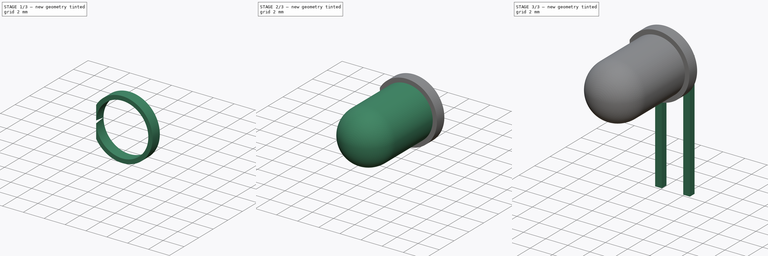
[diagram: build sequence overview — one tinted view per stage of 3, left to right]
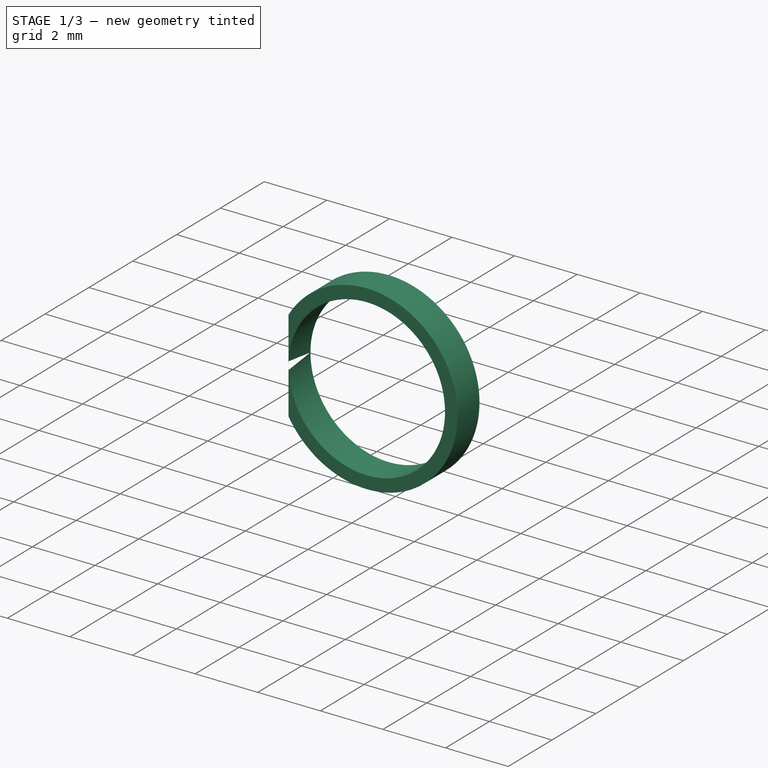
[diagram: stage 1 of 3 — iso view after this stage's code; geometry added in this stage tinted green]
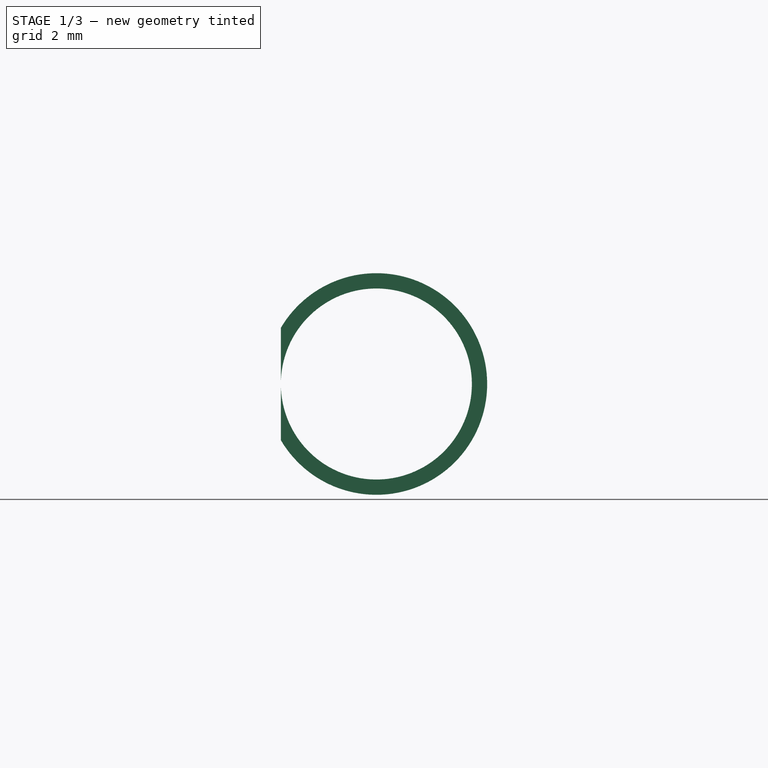
[diagram: stage 1 of 3 — front view after this stage's code; geometry added in this stage tinted green]
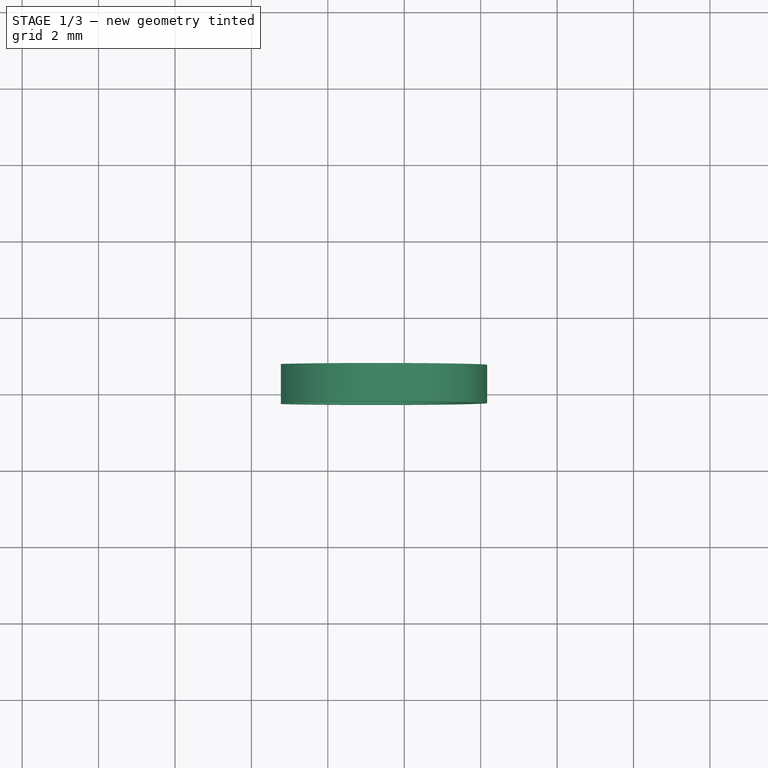
[diagram: stage 1 of 3 — top view after this stage's code; geometry added in this stage tinted green]
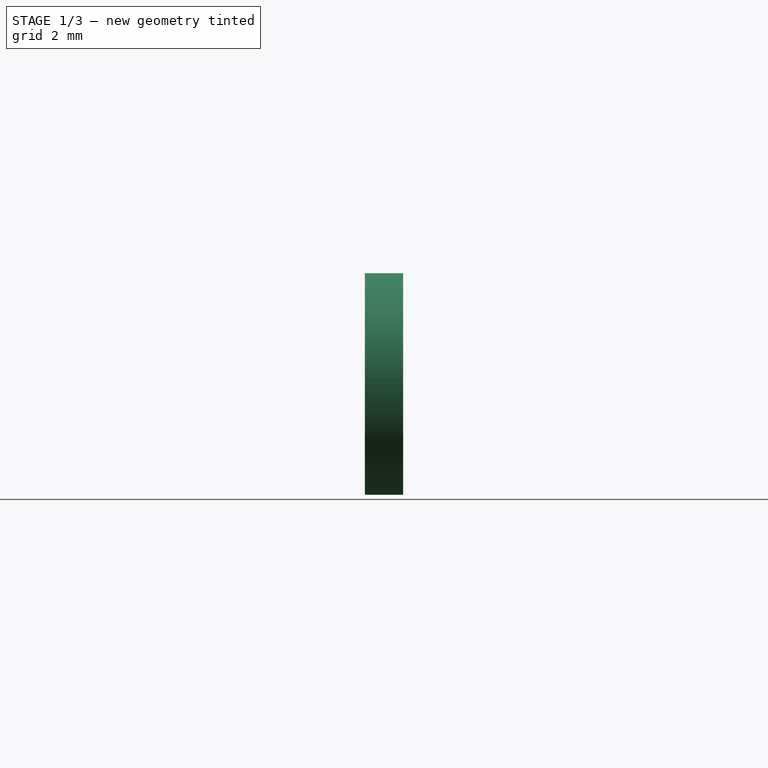
[diagram: stage 1 of 3 — right view after this stage's code; geometry added in this stage tinted green]
FCSTD DOCUMENT  (FreeCAD 0.16R6703 (Git))
Label: LED_D5.0mm_Horizontal_O1.27mm_Z9.0mm
License: All rights reserved
LicenseURL: http://en.wikipedia.org/wiki/All_rights_reserved
objects: Sketcher::SketchObject×7, PartDesign::Pad×4, PartDesign::Revolution×2, Spreadsheet::Sheet×1, PartDesign::Pocket×1
note: 21 computed .brp shape members not serialized (recipe doc carries the construction recipe); baked Part::Feature solids carry a one-line shape summary decoded from their .brp

FEATURE [Sketcher::SketchObject] Sketch004
  Placement = pos=(0,-1.27,0) rot=(1,0,0;1.5708rad)
  expr: Constraints[1] = Spreadsheet.RM / 2
  expr: Constraints[6] = Spreadsheet.dledout / 2
  expr: Constraints[2] = Spreadsheet.ledypos
  expr: Constraints[0] = Spreadsheet.dled / 2
  expr: Placement.Base.y = -Spreadsheet.offsetled
  sketch-geometry (3):
    g0: Circle CenterX=1.27 CenterY=9 CenterZ=0 NormalX=0 NormalY=0 NormalZ=1 Radius=2.5
    g1: LineSegment [constr] StartX=1.27 StartY=9 StartZ=0 EndX=10.2759 EndY=9 EndZ=0
    g2: Circle CenterX=1.27 CenterY=9 CenterZ=0 NormalX=0 NormalY=0 NormalZ=1 Radius=2.9
  constraints (7):
    c: Radius(g0) = 2.5
    c: DistanceX(g-1,g0) = 1.27
    c: DistanceY(g-1,g0) = 9
    c: Coincident(g1,g0)
    c: Horizontal(g1)
    c: Coincident(g2,g0)
    c: Radius(g2) = 2.9
FEATURE [PartDesign::Pad] Pad003
  Length = 1
  Length2 = 100
  Placement = pos=(0,-1.27,0) rot=(1,0,0;1.5708rad)
  Sketch = -> Sketch004
  Type = 0
  expr: Length = Spreadsheet.wledback
FEATURE [Sketcher::SketchObject] Sketch006
  ExternalGeometry = -> [Pad003]
  Placement = pos=(0,-2.27,0) rot=(1,0,0;1.5708rad)
  Support = -> Pad003 [Face4]
  expr: Constraints[12] = Spreadsheet.dledout / 2
  expr: Constraints[11] = Spreadsheet.dledout / 2
  expr: Constraints[8] = Spreadsheet.dledout
  expr: Constraints[9] = (Spreadsheet.dledout - Spreadsheet.dled) / 2
  sketch-geometry (5):
    g0: LineSegment StartX=-1.63 StartY=11.9 StartZ=0 EndX=-1.23 EndY=11.9 EndZ=0
    g1: LineSegment StartX=-1.23 StartY=11.9 StartZ=0 EndX=-1.23 EndY=6.1 EndZ=0
    g2: LineSegment StartX=-1.23 StartY=6.1 StartZ=0 EndX=-1.63 EndY=6.1 EndZ=0
    g3: LineSegment StartX=-1.63 StartY=6.1 StartZ=0 EndX=-1.63 EndY=11.9 EndZ=0
    g4: GeomPoint [constr] X=1.27 Y=9 Z=0
  constraints (13):
    c: Coincident(g0,g1)
    c: Coincident(g1,g2)
    c: Coincident(g2,g3)
    c: Coincident(g3,g0)
    c: Horizontal(g0)
    c: Horizontal(g2)
    c: Vertical(g1)
    c: Vertical(g3)
    c: DistanceY(g3,g3) = 5.8
    c: DistanceX(g2,g2) = 0.4
    c: Coincident(g4,g-3)
    c: DistanceX(g2,g4) = 2.9
    c: DistanceY(g2,g4) = 2.9
FEATURE [PartDesign::Pocket] Pocket
  Length = 5
  Placement = pos=(0,-1.27,0) rot=(1,0,0;1.5708rad)
  Sketch = -> Sketch006
  Type = 1
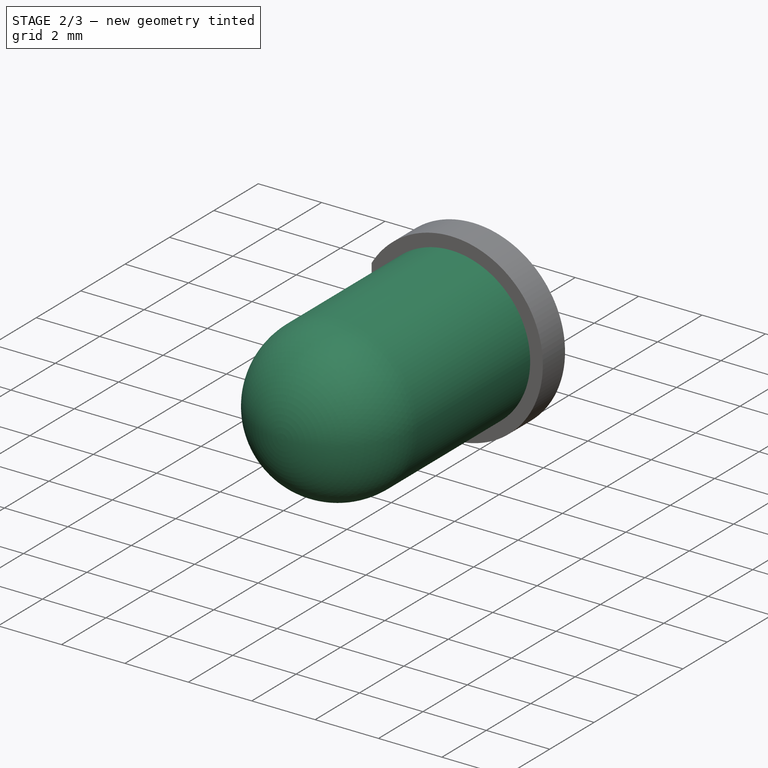
[diagram: stage 2 of 3 — iso view after this stage's code; geometry added in this stage tinted green]
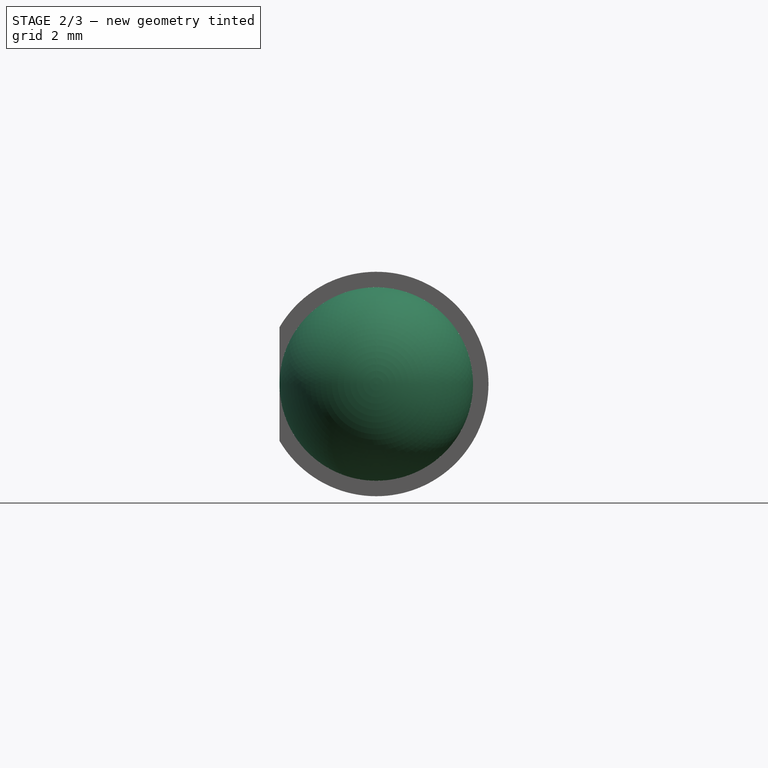
[diagram: stage 2 of 3 — front view after this stage's code; geometry added in this stage tinted green]
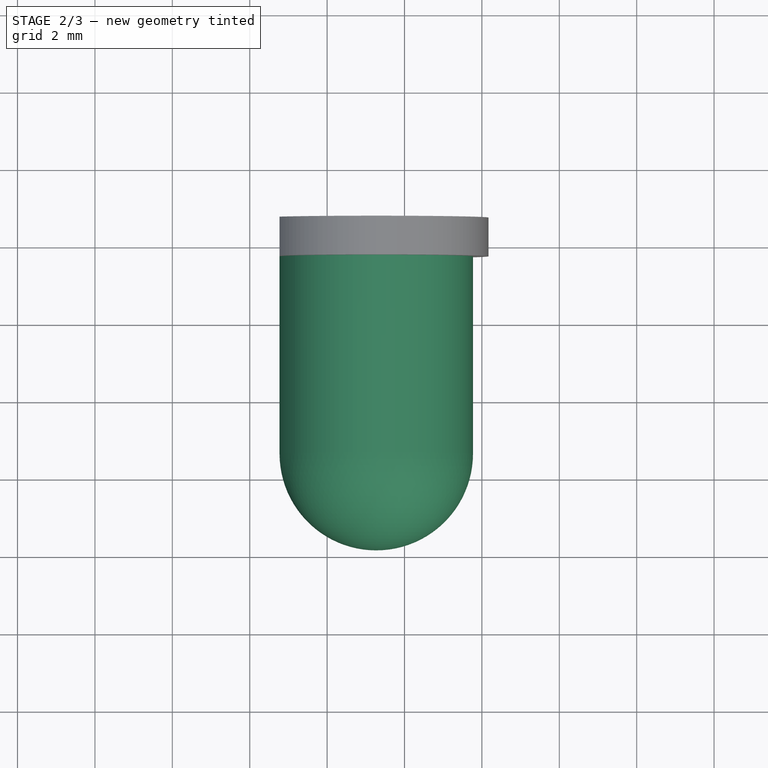
[diagram: stage 2 of 3 — top view after this stage's code; geometry added in this stage tinted green]
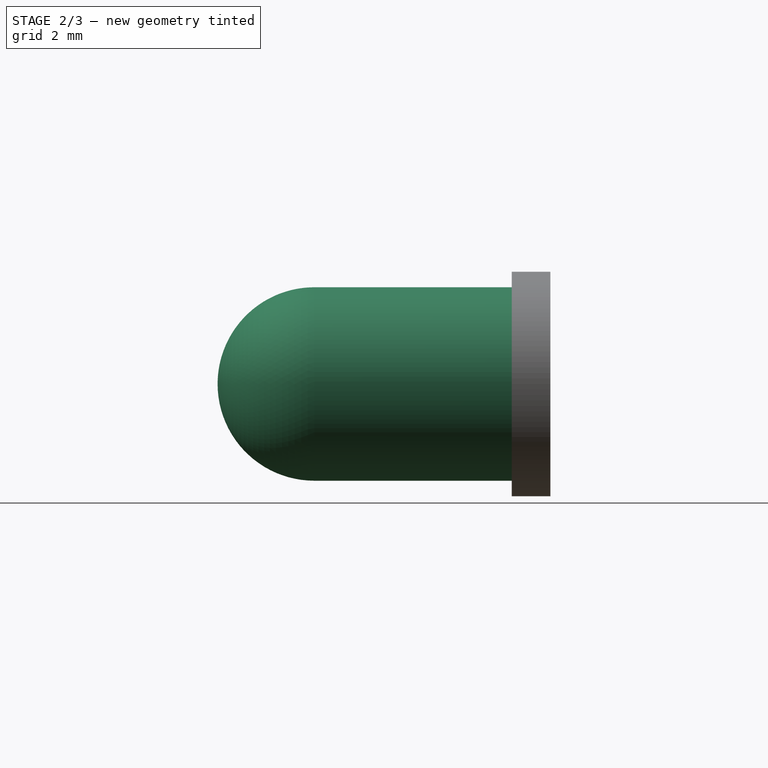
[diagram: stage 2 of 3 — right view after this stage's code; geometry added in this stage tinted green]
FEATURE [Sketcher::SketchObject] Sketch002
  Placement = pos=(0,-1.77,0) rot=(1,0,0;1.5708rad)
  expr: Constraints[10] = Spreadsheet.ledypos - Spreadsheet.d_wire / 2
  expr: Constraints[11] = (Spreadsheet.RM - Spreadsheet.RM) / 2
  expr: Placement.Base.y = -Spreadsheet.offsetled - 0.5
  expr: Constraints[8] = Spreadsheet.RM
  expr: Constraints[9] = Spreadsheet.d_wire
  sketch-geometry (4):
    g0: LineSegment StartX=0 StartY=9.3 StartZ=0 EndX=2.54 EndY=9.3 EndZ=0
    g1: LineSegment StartX=2.54 StartY=9.3 StartZ=0 EndX=2.54 EndY=8.7 EndZ=0
    g2: LineSegment StartX=2.54 StartY=8.7 StartZ=0 EndX=0 EndY=8.7 EndZ=0
    g3: LineSegment StartX=0 StartY=8.7 StartZ=0 EndX=0 EndY=9.3 EndZ=0
  constraints (12):
    c: Coincident(g0,g1)
    c: Coincident(g1,g2)
    c: Coincident(g2,g3)
    c: Coincident(g3,g0)
    c: Horizontal(g0)
    c: Horizontal(g2)
    c: Vertical(g1)
    c: Vertical(g3)
    c: DistanceX(g0,g0) = 2.54
    c: DistanceY(g3,g3) = 0.6
    c: DistanceY(g-1,g2) = 8.7
    c: DistanceX(g-1,g2) = 0
FEATURE [PartDesign::Pad] Pad002
  Length = 1
  Length2 = 100
  Placement = pos=(0,-1.77,0) rot=(1,0,0;1.5708rad)
  Sketch = -> Sketch002
  Type = 0
FEATURE [Sketcher::SketchObject] Sketch003
  Placement = pos=(1.27,0,0) rot=(0.57735,0.57735,0.57735;2.0944rad)
  expr: Constraints[15] = Spreadsheet.dled / 2
  expr: Placement.Base.x = Spreadsheet.RM / 2
  expr: Constraints[11] = Spreadsheet.ledypos
  expr: Constraints[10] = Spreadsheet.offsetled
  expr: Constraints[9] = Spreadsheet.wled
  expr: Constraints[8] = Spreadsheet.dled / 2
  sketch-geometry (5):
    g0: LineSegment StartX=-1.27 StartY=9 StartZ=0 EndX=-9.87 EndY=9 EndZ=0
    g1: LineSegment StartX=-1.27 StartY=9 StartZ=0 EndX=-1.27 EndY=11.5 EndZ=0
    g2: LineSegment StartX=-1.27 StartY=11.5 StartZ=0 EndX=-7.37 EndY=11.5 EndZ=0
    g3: ArcOfCircle CenterX=-7.37 CenterY=9 CenterZ=0 NormalX=0 NormalY=0 NormalZ=1 Radius=2.5 StartAngle=1.5708 EndAngle=3.14159
    g4: LineSegment [constr] StartX=-5.8104 StartY=9 StartZ=0 EndX=-7.37 EndY=9 EndZ=0
  constraints (16):
    c: Horizontal(g0)
    c: Coincident(g1,g0)
    c: Vertical(g1)
    c: Coincident(g2,g1)
    c: Horizontal(g2)
    c: Coincident(g3,g0)
    c: Coincident(g3,g2)
    c: PointOnObject(g3,g0)
    c: DistanceY(g1,g1) = 2.5
    c: DistanceX(g0,g0) = 8.6
    c: DistanceX(g0,g-1) = 1.27
    c: DistanceY(g-1,g0) = 9
    c: PointOnObject(g4,g0)
    c: Horizontal(g4)
    c: DistanceX(g2,g4) = 0
    c: DistanceX(g0,g4) = 2.5
FEATURE [PartDesign::Revolution] Revolution
  Angle = 360
  Axis = (0,-1.5596,0)
  Base = (1.27,-5.8104,9)
  Placement = pos=(1.27,0,0) rot=(0.57735,0.57735,0.57735;2.0944rad)
  ReferenceAxis = -> Sketch003 [Axis0]
  Reversed = true
  Sketch = -> Sketch003
FEATURE [Sketcher::SketchObject] Sketch005
  Placement = pos=(1.27,0,0) rot=(0.57735,0.57735,0.57735;2.0944rad)
  expr: Constraints[2] = Spreadsheet.offsetled + 1.2
  expr: Placement.Base.x = Spreadsheet.RM / 2
  expr: Constraints[1] = 0.5
  expr: Constraints[3] = Spreadsheet.ledypos
  sketch-geometry (4):
    g0: LineSegment StartX=-2.47 StartY=9 StartZ=0 EndX=-2.97 EndY=9 EndZ=0
    g1: LineSegment [constr] StartX=-3.9772 StartY=9 StartZ=0 EndX=-7.31458 EndY=9 EndZ=0
    g2: LineSegment StartX=-2.97 StartY=9 StartZ=0 EndX=-2.97 EndY=9.5 EndZ=0
    g3: LineSegment StartX=-2.97 StartY=9.5 StartZ=0 EndX=-2.47 EndY=9 EndZ=0
  constraints (11):
    c: Horizontal(g0)
    c: DistanceX(g0,g0) = 0.5
    c: DistanceX(g0,g-1) = 2.47
    c: DistanceY(g-1,g0) = 9
    c: PointOnObject(g1,g0)
    c: Horizontal(g1)
    c: Coincident(g2,g0)
    c: Vertical(g2)
    c: Coincident(g3,g2)
    c: Coincident(g3,g0)
    c: Angle(g3,g0) = 0.785398
FEATURE [PartDesign::Revolution] Revolution001
  Angle = 360
  Axis = (0,-3.33738,0)
  Base = (1.27,-3.9772,9)
  Placement = pos=(1.27,0,0) rot=(0.57735,0.57735,0.57735;2.0944rad)
  ReferenceAxis = -> Sketch005 [Axis0]
  Reversed = true
  Sketch = -> Sketch005
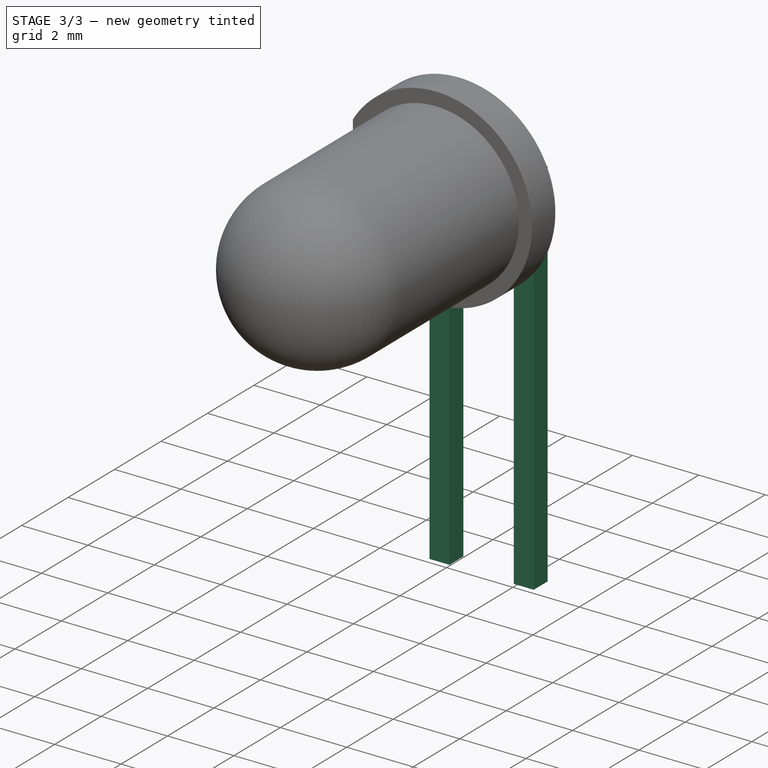
[diagram: stage 3 of 3 — iso view after this stage's code; geometry added in this stage tinted green]
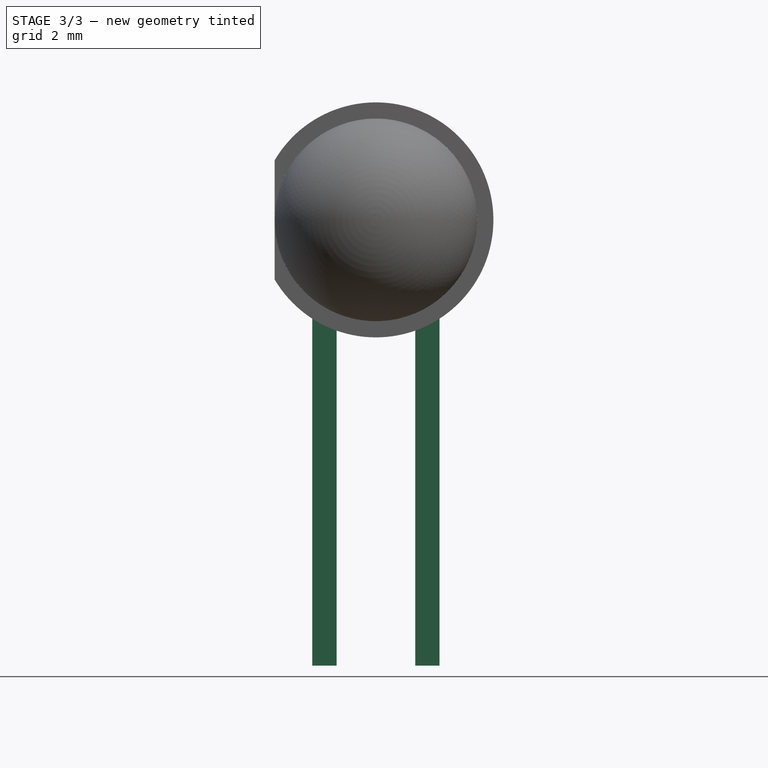
[diagram: stage 3 of 3 — front view after this stage's code; geometry added in this stage tinted green]
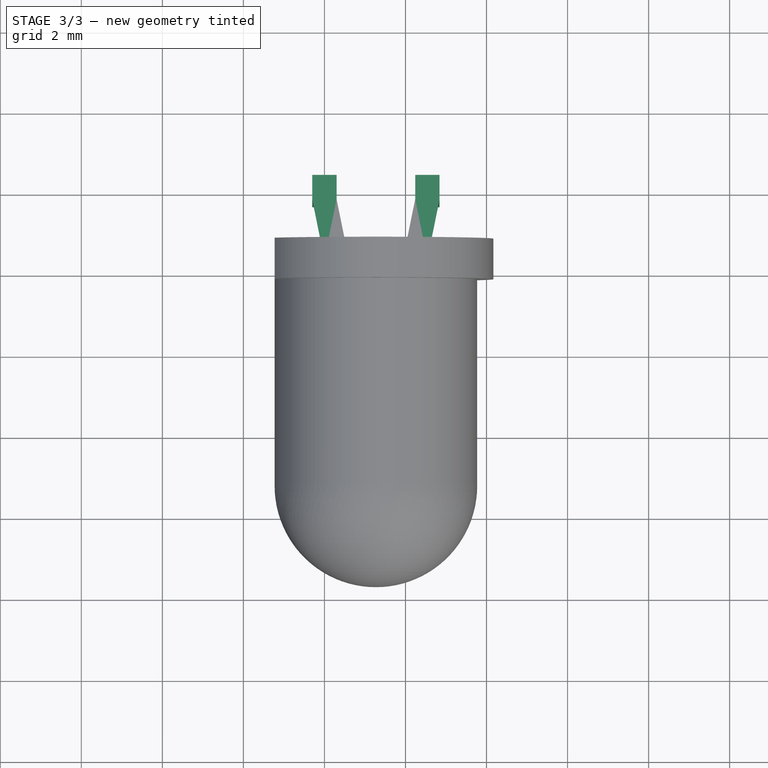
[diagram: stage 3 of 3 — top view after this stage's code; geometry added in this stage tinted green]
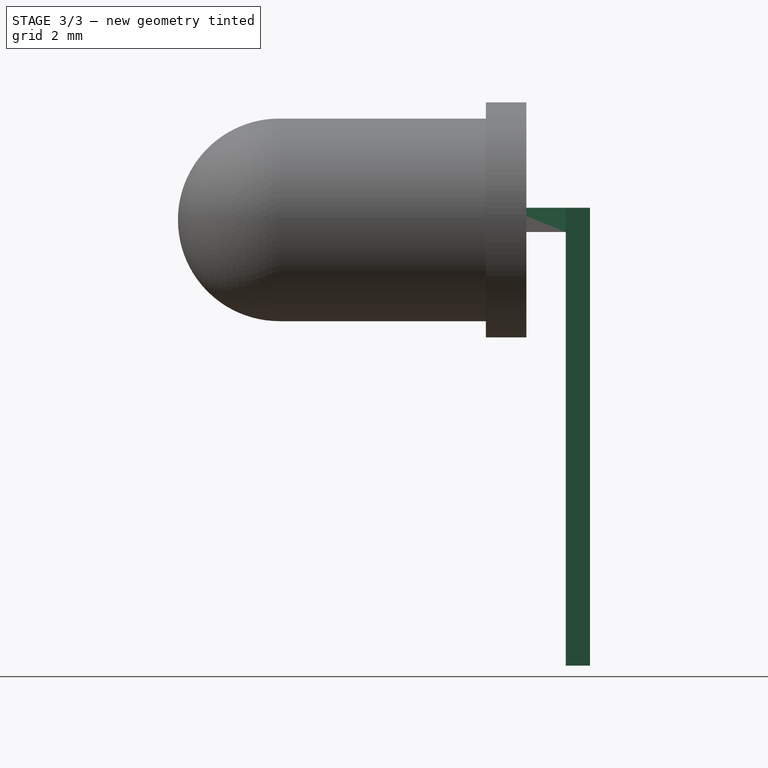
[diagram: stage 3 of 3 — right view after this stage's code; geometry added in this stage tinted green]
FEATURE [Spreadsheet::Sheet] Spreadsheet
  cells = A1=dled; B1(dled)=5; A2=dledout; B2(dledout)=5.8; A3=offsetled; B3(offsetled)=1.27; A4=RM; B4(RM)=2.54; A5=d_wire; B5(d_wire)=0.6000000000000001; A6=H; B6(H)=5; A7=wled; B7(wled)=8.6; A8=ledypos; B8(ledypos)=9; A9=wledback; B9(wledback)=1
FEATURE [Sketcher::SketchObject] Sketch
  expr: Constraints[23] = Spreadsheet.d_wire / 2
  expr: Constraints[22] = Spreadsheet.d_wire / 2
  expr: Constraints[21] = Spreadsheet.d_wire
  expr: Constraints[20] = Spreadsheet.d_wire
  expr: Constraints[16] = Spreadsheet.RM
  sketch-geometry (8):
    g0: LineSegment StartX=0.3 StartY=0.3 StartZ=0 EndX=-0.3 EndY=0.3 EndZ=0
    g1: LineSegment StartX=-0.3 StartY=0.3 StartZ=0 EndX=-0.3 EndY=-0.3 EndZ=0
    g2: LineSegment StartX=-0.3 StartY=-0.3 StartZ=0 EndX=0.3 EndY=-0.3 EndZ=0
    g3: LineSegment StartX=0.3 StartY=-0.3 StartZ=0 EndX=0.3 EndY=0.3 EndZ=0
    g4: LineSegment StartX=2.84 StartY=0.3 StartZ=0 EndX=2.24 EndY=0.3 EndZ=0
    g5: LineSegment StartX=2.24 StartY=0.3 StartZ=0 EndX=2.24 EndY=-0.3 EndZ=0
    g6: LineSegment StartX=2.24 StartY=-0.3 StartZ=0 EndX=2.84 EndY=-0.3 EndZ=0
    g7: LineSegment StartX=2.84 StartY=-0.3 StartZ=0 EndX=2.84 EndY=0.3 EndZ=0
  constraints (24):
    c: Coincident(g0,g1)
    c: Coincident(g1,g2)
    c: Coincident(g2,g3)
    c: Coincident(g3,g0)
    c: Horizontal(g0)
    c: Horizontal(g2)
    c: Vertical(g1)
    c: Vertical(g3)
    c: Coincident(g4,g5)
    c: Coincident(g5,g6)
    c: Coincident(g6,g7)
    c: Coincident(g7,g4)
    c: Horizontal(g4)
    c: Horizontal(g6)
    c: Vertical(g5)
    c: Vertical(g7)
    c: DistanceX(g0,g4) = 2.54
    c: Equal(g0,g4)
    c: DistanceY(g4,g0) = 0
    c: Equal(g3,g7)
    c: DistanceX(g0,g0) = 0.6
    c: DistanceY(g1,g1) = 0.6
    c: DistanceX(g0,g-1) = 0.3
    c: DistanceY(g-1,g0) = 0.3
FEATURE [PartDesign::Pad] Pad
  Length = 8.7
  Length2 = 2
  Sketch = -> Sketch
  Type = 4
  expr: Length = Spreadsheet.ledypos - Spreadsheet.d_wire / 2
FEATURE [Sketcher::SketchObject] Sketch001
  Placement = pos=(0,0,8.7) rot=(0,0,1;0rad)
  expr: Constraints[34] = Spreadsheet.d_wire / 2 + (Spreadsheet.RM - Spreadsheet.RM) / 2
  expr: Constraints[32] = Spreadsheet.RM - 2 * Spreadsheet.d_wire
  expr: Constraints[3] = Spreadsheet.d_wire
  expr: Constraints[15] = Spreadsheet.d_wire
  expr: Constraints[5] = Spreadsheet.d_wire / 2
  expr: Placement.Base.z = Spreadsheet.ledypos - Spreadsheet.d_wire / 2
  expr: Constraints[6] = Spreadsheet.RM - Spreadsheet.d_wire
  expr: Constraints[35] = Spreadsheet.offsetled + 0.5
  expr: Constraints[4] = Spreadsheet.d_wire / 2
  expr: Constraints[22] = Spreadsheet.RM + Spreadsheet.d_wire
  expr: Constraints[31] = Spreadsheet.RM
  sketch-geometry (12):
    g0: LineSegment StartX=0.3 StartY=0.3 StartZ=0 EndX=-0.3 EndY=0.3 EndZ=0
    g1: LineSegment StartX=2.84 StartY=0.3 StartZ=0 EndX=2.24 EndY=0.3 EndZ=0
    g2: LineSegment StartX=-0.3 StartY=0.3 StartZ=0 EndX=-0.3 EndY=-0.3 EndZ=0
    g3: LineSegment StartX=0.3 StartY=0.3 StartZ=0 EndX=0.3 EndY=-0.3 EndZ=0
    g4: LineSegment StartX=0.3 StartY=-0.3 StartZ=0 EndX=0.6 EndY=-1.77 EndZ=0
    g5: LineSegment StartX=-0.3 StartY=-0.3 StartZ=0 EndX=0 EndY=-1.77 EndZ=0
    g6: LineSegment StartX=0 StartY=-1.77 StartZ=0 EndX=0.6 EndY=-1.77 EndZ=0
    g7: LineSegment StartX=2.24 StartY=0.3 StartZ=0 EndX=2.24 EndY=-0.3 EndZ=0
    g8: LineSegment StartX=2.84 StartY=0.3 StartZ=0 EndX=2.84 EndY=-0.3 EndZ=0
    g9: LineSegment StartX=2.24 StartY=-0.3 StartZ=0 EndX=1.94 EndY=-1.77 EndZ=0
    g10: LineSegment StartX=2.84 StartY=-0.3 StartZ=0 EndX=2.54 EndY=-1.77 EndZ=0
    g11: LineSegment StartX=2.54 StartY=-1.77 StartZ=0 EndX=1.94 EndY=-1.77 EndZ=0
  constraints (36):
    c: Horizontal(g0)
    c: Horizontal(g1)
    c: DistanceY(g1,g0) = 0
    c: DistanceX(g0,g0) = 0.6
    c: DistanceX(g0,g-1) = 0.3
    c: DistanceY(g-1,g0) = 0.3
    c: DistanceX(g0,g1) = 1.94
    c: Coincident(g2,g0)
    c: Vertical(g2)
    c: Coincident(g3,g0)
    c: Vertical(g3)
    c: Coincident(g6,g5)
    c: Coincident(g6,g4)
    c: Horizontal(g6)
    c: Coincident(g3,g4)
    c: DistanceY(g2,g2) = 0.6
    c: Coincident(g5,g2)
    c: Equal(g3,g2)
    c: Coincident(g7,g1)
    c: Vertical(g7)
    c: Coincident(g8,g1)
    c: Vertical(g8)
    c: DistanceX(g0,g1) = 3.14
    c: DistanceY(g3,g7) = 0
    c: DistanceY(g2,g8) = 0
    c: Coincident(g9,g7)
    c: Coincident(g10,g8)
    c: Coincident(g11,g10)
    c: Coincident(g11,g9)
    c: Horizontal(g11)
    c: Equal(g11,g1)
    c: DistanceX(g5,g10) = 2.54
    c: DistanceX(g4,g9) = 1.34
    c: DistanceY(g9,g4) = 0
    c: DistanceX(g2,g5) = 0.3
    c: DistanceY(g5,g-1) = 1.77
FEATURE [PartDesign::Pad] Pad001
  Length = 0.6
  Length2 = 100
  Placement = pos=(0,0,8.7) rot=(0,0,1;0rad)
  Sketch = -> Sketch001
  Type = 0
  expr: Length = Spreadsheet.d_wire
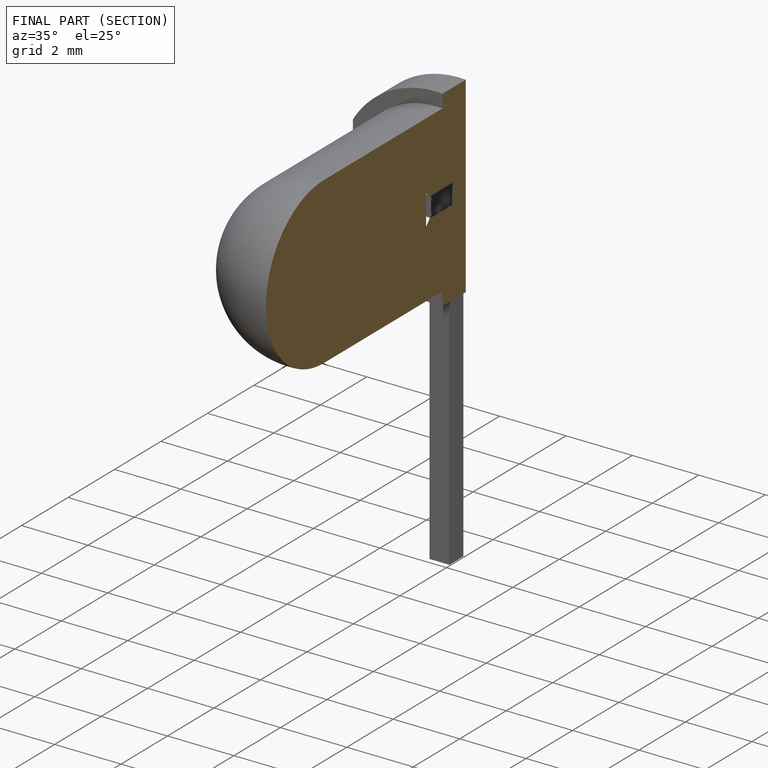
[diagram: finished part — half-section view (interior)]
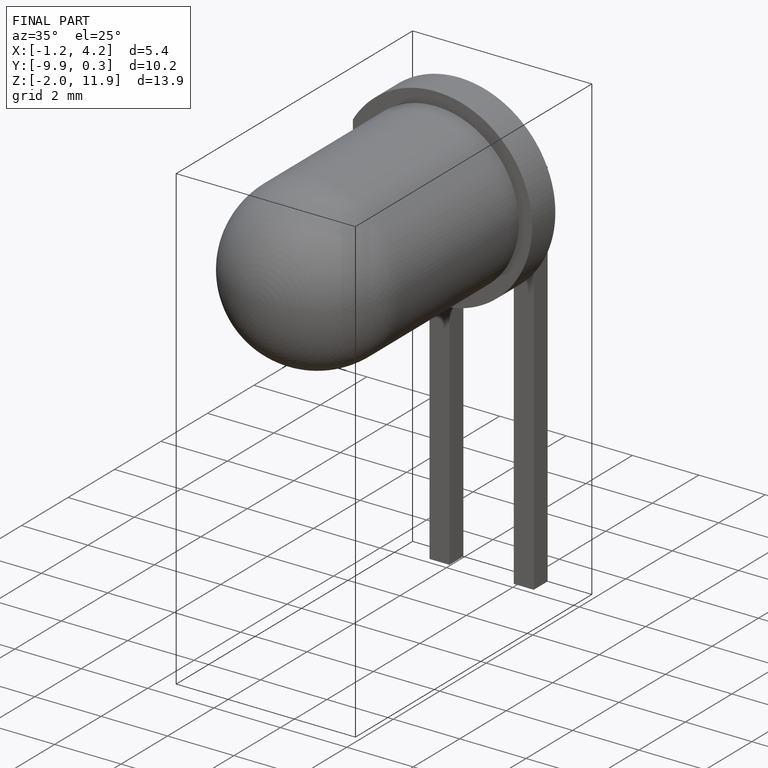
[diagram: finished part — iso view with bounding-box wireframe]
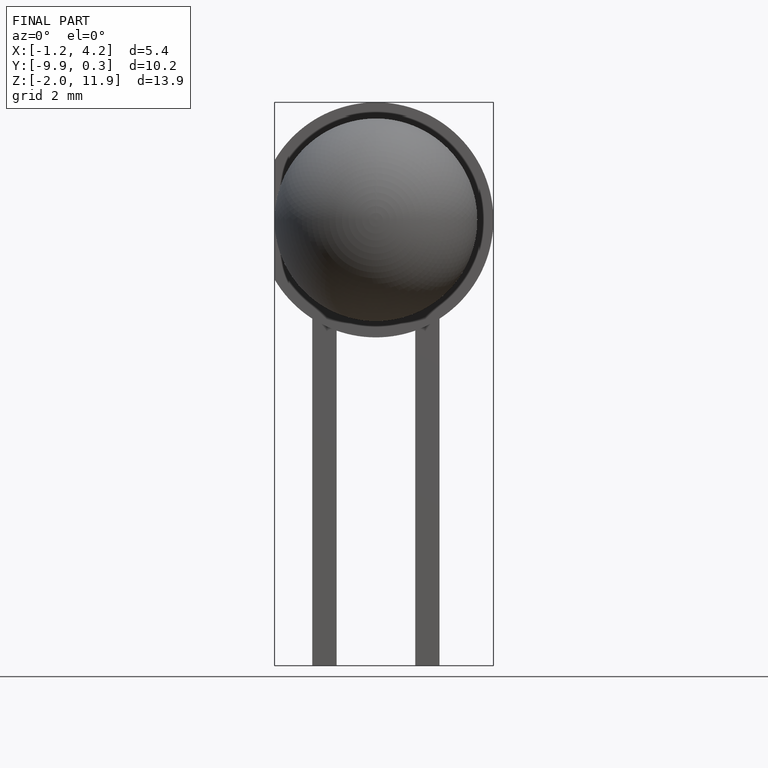
[diagram: finished part — front view with bounding-box wireframe]
